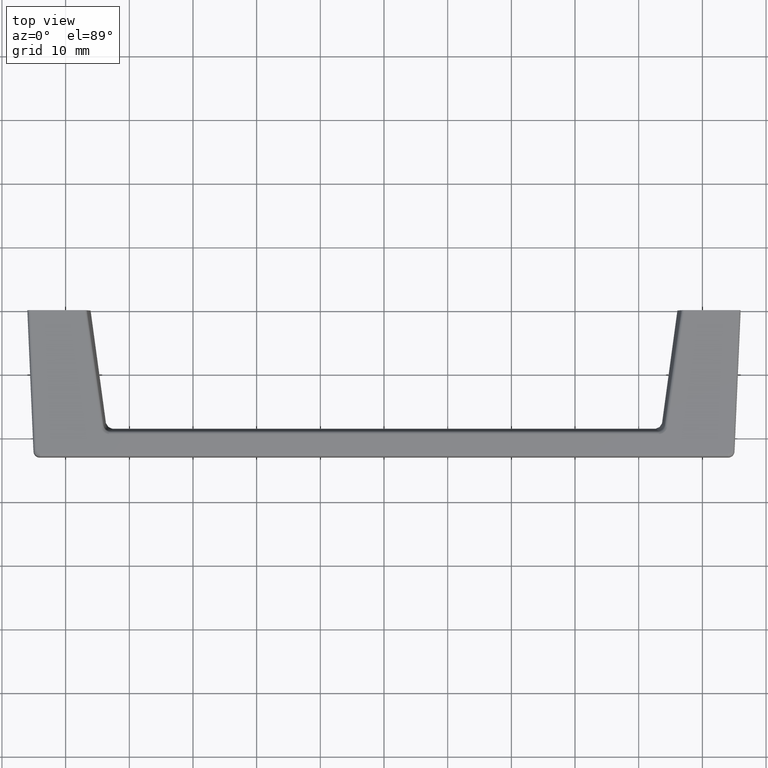
[diagram: clean part render]
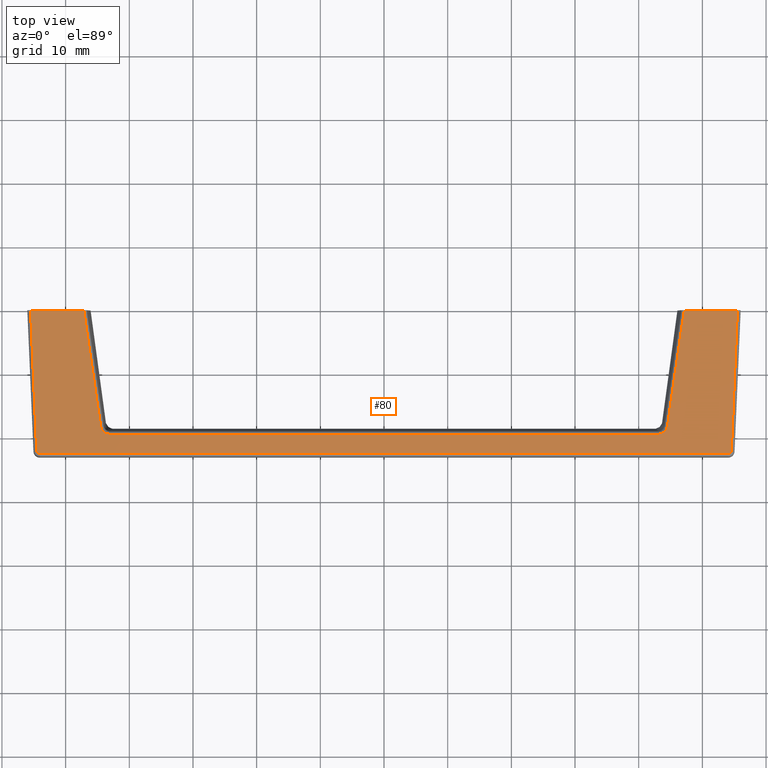
[diagram: same view with one face highlighted and labeled with its STEP entity id]
A machine part, top view. The second image highlights one B-rep face of the part: STEP entity #80.
In plain terms, the highlighted planar face has unit normal (0, 0.0434, -0.9991).
Its self-contained STEP definition (entity closure, byte-faithful):
#80=ADVANCED_FACE('',(#166),#165,.F.);
#165=PLANE('',#625);
#166=FACE_OUTER_BOUND('',#626,.T.);
#622=CARTESIAN_POINT('',(-6.55002717409E+001,4.42306583607E+000,2.47742159205E+001));
#623=DIRECTION('',(0.00000000000E+000,-9.99056518227E-001,-4.34289464349E-002));
#624=DIRECTION('',(0.00000000000E+000,4.34289464349E-002,-9.99056518227E-001));
#625=AXIS2_PLACEMENT_3D('',#622,#623,#624);
#626=EDGE_LOOP('',(#947,#948,#949,#950,#951,#952,#953,#954,#955,#956,#957,#958));
#947=ORIENTED_EDGE('',*,*,#1128,.T.);
#948=ORIENTED_EDGE('',*,*,#1129,.T.);
#949=ORIENTED_EDGE('',*,*,#1130,.T.);
#950=ORIENTED_EDGE('',*,*,#1131,.T.);
#951=ORIENTED_EDGE('',*,*,#1132,.T.);
#952=ORIENTED_EDGE('',*,*,#1133,.T.);
#953=ORIENTED_EDGE('',*,*,#1134,.T.);
#954=ORIENTED_EDGE('',*,*,#1135,.T.);
#955=ORIENTED_EDGE('',*,*,#1136,.T.);
#956=ORIENTED_EDGE('',*,*,#1137,.T.);
#957=ORIENTED_EDGE('',*,*,#1127,.T.);
#958=ORIENTED_EDGE('',*,*,#1138,.T.);
#1127=EDGE_CURVE('',#1299,#1306,#1313,.T.);
#1128=EDGE_CURVE('',#1319,#1320,#1321,.T.);
#1129=EDGE_CURVE('',#1320,#1327,#1328,.T.);
#1130=EDGE_CURVE('',#1327,#1334,#1335,.T.);
#1131=EDGE_CURVE('',#1334,#1341,#1342,.T.);
#1132=EDGE_CURVE('',#1341,#1348,#1349,.T.);
#1133=EDGE_CURVE('',#1348,#1355,#1356,.T.);
#1134=EDGE_CURVE('',#1355,#1362,#1363,.T.);
#1135=EDGE_CURVE('',#1362,#1369,#1370,.T.);
#1136=EDGE_CURVE('',#1369,#1376,#1377,.T.);
#1137=EDGE_CURVE('',#1376,#1299,#1383,.T.);
#1138=EDGE_CURVE('',#1306,#1319,#1389,.T.);
#1299=VERTEX_POINT('',#1917);
#1306=VERTEX_POINT('',#1922);
#1313=(BOUNDED_CURVE() B_SPLINE_CURVE(3,(#1927,#1928,#1929,#1930,#1931,#1932,#1933,#1934),.UNSPECIFIED.,.F.,.F.) B_SPLINE_CURVE_WITH_KNOTS((4,2,2,4),(0.00000000000E+000,5.23597343404E-004,1.04719468681E-003,2.09438937362E-003),.UNSPECIFIED.) CURVE() GEOMETRIC_REPRESENTATION_ITEM() RATIONAL_B_SPLINE_CURVE((1.00000000000E+000,1.00000000000E+000,1.00000000000E+000,1.00000000000E+000,1.00000000000E+000,1.00000000000E+000,1.00000000000E+000,1.00000000000E+000)) REPRESENTATION_ITEM('') );
#1319=VERTEX_POINT('',#1935);
#1320=VERTEX_POINT('',#1936);
#1321=(BOUNDED_CURVE() B_SPLINE_CURVE(3,(#1937,#1938,#1939,#1940,#1941,#1942,#1943,#1944,#1945,#1946),.UNSPECIFIED.,.F.,.F.) B_SPLINE_CURVE_WITH_KNOTS((4,2,2,2,4),(0.00000000000E+000,5.23658047299E-004,1.04731609460E-003,1.57097414190E-003,2.09463218919E-003),.UNSPECIFIED.) CURVE() GEOMETRIC_REPRESENTATION_ITEM() RATIONAL_B_SPLINE_CURVE((1.00000000000E+000,1.00000000000E+000,1.00000000000E+000,1.00000000000E+000,1.00000000000E+000,1.00000000000E+000,1.00000000000E+000,1.00000000000E+000,1.00000000000E+000,1.00000000000E+000)) REPRESENTATION_ITEM('') );
#1327=VERTEX_POINT('',#1947);
#1328=(BOUNDED_CURVE() B_SPLINE_CURVE(2,(#1948,#1949,#1950),.UNSPECIFIED.,.F.,.F.) B_SPLINE_CURVE_WITH_KNOTS((3,3),(-1.35941033584E+000,-1.31769366303E+000),.UNSPECIFIED.) CURVE() GEOMETRIC_REPRESENTATION_ITEM() RATIONAL_B_SPLINE_CURVE((1.00000000000E+000,9.99782472788E-001,1.00000000000E+000)) REPRESENTATION_ITEM('') );
#1334=VERTEX_POINT('',#1951);
#1335=LINE('',#1952,#1953);
#1341=VERTEX_POINT('',#1955);
#1342=LINE('',#1956,#1957);
#1348=VERTEX_POINT('',#1959);
#1349=(BOUNDED_CURVE() B_SPLINE_CURVE(2,(#1960,#1961,#1962),.UNSPECIFIED.,.F.,.F.) B_SPLINE_CURVE_WITH_KNOTS((3,3),(-1.52736374015E+000,-0.00000000000E+000),.UNSPECIFIED.) CURVE() GEOMETRIC_REPRESENTATION_ITEM() RATIONAL_B_SPLINE_CURVE((1.00000000000E+000,7.22294584225E-001,1.00000000000E+000)) REPRESENTATION_ITEM('') );
#1355=VERTEX_POINT('',#1963);
#1356=LINE('',#1964,#1965);
#1362=VERTEX_POINT('',#1967);
#1363=(BOUNDED_CURVE() B_SPLINE_CURVE(2,(#1968,#1969,#1970),.UNSPECIFIED.,.F.,.F.) B_SPLINE_CURVE_WITH_KNOTS((3,3),(-0.00000000000E+000,1.52736374015E+000),.UNSPECIFIED.) CURVE() GEOMETRIC_REPRESENTATION_ITEM() RATIONAL_B_SPLINE_CURVE((1.00000000000E+000,7.22294584225E-001,1.00000000000E+000)) REPRESENTATION_ITEM('') );
#1369=VERTEX_POINT('',#1971);
#1370=LINE('',#1972,#1973);
#1376=VERTEX_POINT('',#1975);
#1377=LINE('',#1976,#1977);
#1383=(BOUNDED_CURVE() B_SPLINE_CURVE(2,(#1979,#1980,#1981),.UNSPECIFIED.,.F.,.F.) B_SPLINE_CURVE_WITH_KNOTS((3,3),(1.31769366303E+000,1.35941033584E+000),.UNSPECIFIED.) CURVE() GEOMETRIC_REPRESENTATION_ITEM() RATIONAL_B_SPLINE_CURVE((1.00000000000E+000,9.99782472788E-001,1.00000000000E+000)) REPRESENTATION_ITEM('') );
#1389=LINE('',#1982,#1983);
#1917=CARTESIAN_POINT('',(4.45092286707E+001,4.70830937107E+000,1.82123617583E+001));
#1922=CARTESIAN_POINT('',(4.30464068542E+001,4.65368396505E+000,1.94689860244E+001));
#1927=CARTESIAN_POINT('',(4.45092286707E+001,4.70830937107E+000,1.82123617583E+001));
#1928=CARTESIAN_POINT('',(4.44838853441E+001,4.70070191247E+000,1.83873667199E+001));
#1929=CARTESIAN_POINT('',(4.44286269352E+001,4.69345975094E+000,1.85539682442E+001));
#1930=CARTESIAN_POINT('',(4.42594556351E+001,4.68001026039E+000,1.88633656003E+001));
#1931=CARTESIAN_POINT('',(4.41482542281E+001,4.67405194016E+000,1.90004331360E+001));
#1932=CARTESIAN_POINT('',(4.37474646520E+001,4.65913238074E+000,1.93436485328E+001));
#1933=CARTESIAN_POINT('',(4.34003497959E+001,4.65368396505E+000,1.94689860244E+001));
#1934=CARTESIAN_POINT('',(4.30464068542E+001,4.65368396505E+000,1.94689860244E+001));
#1935=CARTESIAN_POINT('',(-4.30464068542E+001,4.65368396505E+000,1.94689860244E+001));
#1936=CARTESIAN_POINT('',(-4.45092286707E+001,4.70830937107E+000,1.82123617583E+001));
#1937=CARTESIAN_POINT('',(-4.30464068542E+001,4.65368396505E+000,1.94689860244E+001));
#1938=CARTESIAN_POINT('',(-4.32234040808E+001,4.65368396505E+000,1.94689860244E+001));
#1939=CARTESIAN_POINT('',(-4.33961860939E+001,4.65498749834E+000,1.94389990334E+001));
#1940=CARTESIAN_POINT('',(-4.37281293988E+001,4.66023496938E+000,1.93182841513E+001));
#1941=CARTESIAN_POINT('',(-4.38802668979E+001,4.66408055986E+000,1.92298186795E+001));
#1942=CARTESIAN_POINT('',(-4.41480527398E+001,4.67403989657E+000,1.90007101914E+001));
#1943=CARTESIAN_POINT('',(-4.42594381700E+001,4.68001479099E+000,1.88632613766E+001));
#1944=CARTESIAN_POINT('',(-4.44281250312E+001,4.69341394756E+000,1.85550219233E+001));
#1945=CARTESIAN_POINT('',(-4.44838775605E+001,4.70069957602E+000,1.83874204684E+001));
#1946=CARTESIAN_POINT('',(-4.45092286707E+001,4.70830937107E+000,1.82123617583E+001));
#1947=CARTESIAN_POINT('',(-4.71642084599E+001,5.50000000000E+000,0.00000000000E+000));
#1948=CARTESIAN_POINT('',(-4.45092286707E+001,4.70830937107E+000,1.82123617583E+001));
#1949=CARTESIAN_POINT('',(-4.58346151789E+001,5.10615860247E+000,9.06008198798E+000));
#1950=CARTESIAN_POINT('',(-4.71642084599E+001,5.50000000000E+000,7.60917165651E-013));
#1951=CARTESIAN_POINT('',(-5.55002717409E+001,5.50000000000E+000,0.00000000000E+000));
#1952=CARTESIAN_POINT('',(-4.71642084599E+001,5.50000000000E+000,0.00000000000E+000));
#1953=VECTOR('',#1954,8.33606328100E+000);
#1954=DIRECTION('',(-1.00000000000E+000,0.00000000000E+000,0.00000000000E+000));
#1955=CARTESIAN_POINT('',(-5.45422533165E+001,4.54176021203E+000,2.20437239396E+001));
#1956=CARTESIAN_POINT('',(-5.55002717409E+001,5.50000000000E+000,1.06581410364E-014));
#1957=VECTOR('',#1958,2.20853296991E+001);
#1958=DIRECTION('',(4.33780449480E-002,-4.33880680537E-002,9.98116135912E-001));
#1959=CARTESIAN_POINT('',(-5.40427248397E+001,4.52096894188E+000,2.25220144732E+001));
#1960=CARTESIAN_POINT('',(-5.45422533165E+001,4.54176021203E+000,2.20437239396E+001));
#1961=CARTESIAN_POINT('',(-5.45214668493E+001,4.52096894188E+000,2.25220144732E+001));
#1962=CARTESIAN_POINT('',(-5.40427248397E+001,4.52096894188E+000,2.25220144732E+001));
#1963=CARTESIAN_POINT('',(5.40427248397E+001,4.52096894188E+000,2.25220144732E+001));
#1964=CARTESIAN_POINT('',(-5.40427248397E+001,4.52096894188E+000,2.25220144732E+001));
#1965=VECTOR('',#1966,1.08085449679E+002);
#1966=DIRECTION('',(1.00000000000E+000,0.00000000000E+000,0.00000000000E+000));
#1967=CARTESIAN_POINT('',(5.45422533165E+001,4.54176021203E+000,2.20437239396E+001));
#1968=CARTESIAN_POINT('',(5.40427248397E+001,4.52096894188E+000,2.25220144732E+001));
#1969=CARTESIAN_POINT('',(5.45214668493E+001,4.52096894188E+000,2.25220144732E+001));
#1970=CARTESIAN_POINT('',(5.45422533165E+001,4.54176021203E+000,2.20437239396E+001));
#1971=CARTESIAN_POINT('',(5.55002717409E+001,5.50000000000E+000,0.00000000000E+000));
#1972=CARTESIAN_POINT('',(5.45422533165E+001,4.54176021203E+000,2.20437239396E+001));
#1973=VECTOR('',#1974,2.20853296991E+001);
#1974=DIRECTION('',(4.33780449480E-002,4.33880680537E-002,-9.98116135912E-001));
#1975=CARTESIAN_POINT('',(4.71642084599E+001,5.50000000000E+000,0.00000000000E+000));
#1976=CARTESIAN_POINT('',(5.55002717409E+001,5.50000000000E+000,0.00000000000E+000));
#1977=VECTOR('',#1978,8.33606328100E+000);
#1978=DIRECTION('',(-1.00000000000E+000,0.00000000000E+000,0.00000000000E+000));
#1979=CARTESIAN_POINT('',(4.71642084599E+001,5.50000000000E+000,8.08474488504E-013));
#1980=CARTESIAN_POINT('',(4.58346151789E+001,5.10615860247E+000,9.06008198798E+000));
#1981=CARTESIAN_POINT('',(4.45092286707E+001,4.70830937107E+000,1.82123617583E+001));
#1982=CARTESIAN_POINT('',(4.30464068542E+001,4.65368396505E+000,1.94689860244E+001));
#1983=VECTOR('',#1984,8.60928137083E+001);
#1984=DIRECTION('',(-1.00000000000E+000,0.00000000000E+000,0.00000000000E+000));